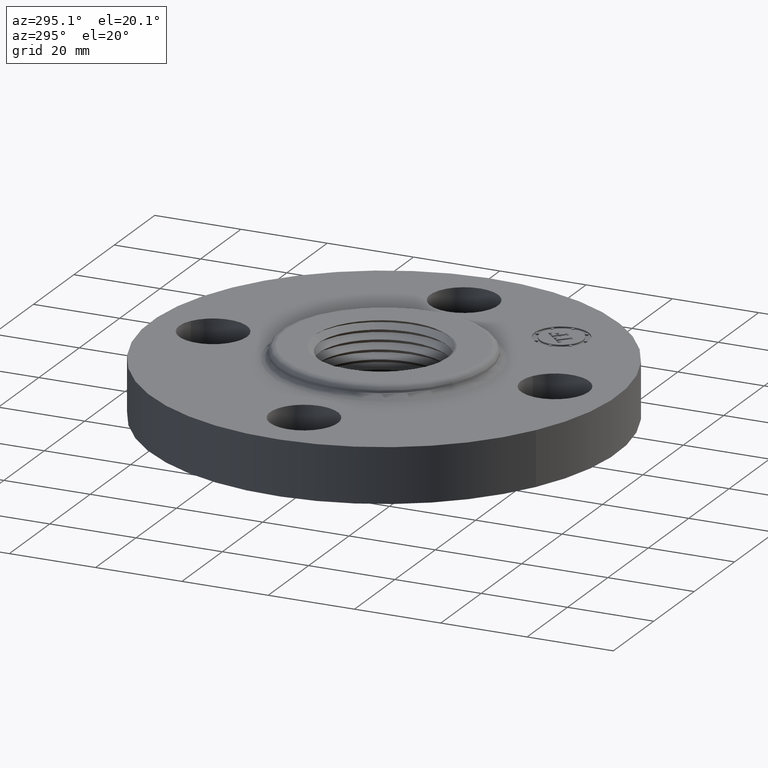
[diagram: clean part render]
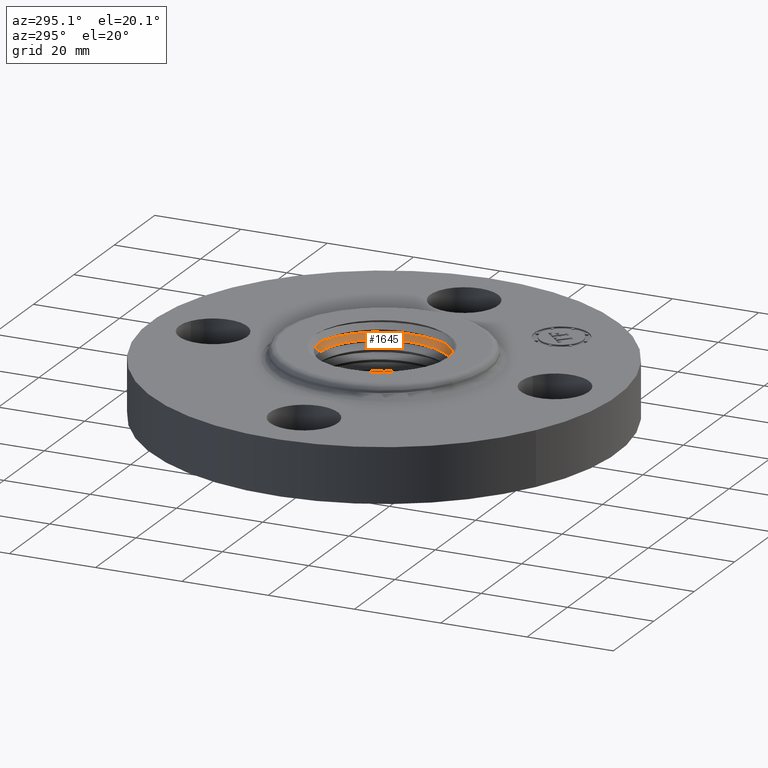
[diagram: same view with one face highlighted and labeled with its STEP entity id]
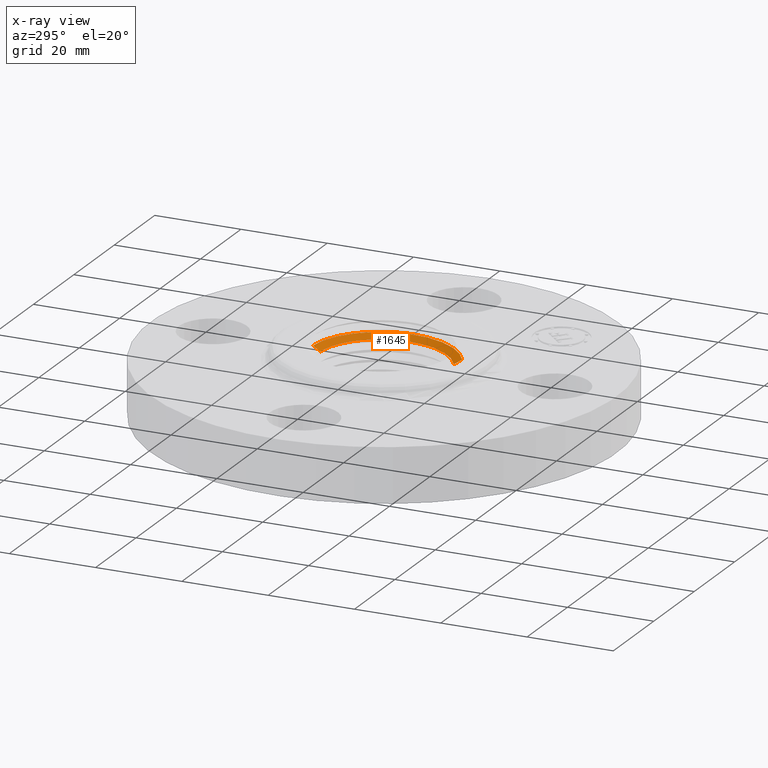
[diagram: x-ray of the same camera — body ghosted, the highlighted face saturated]
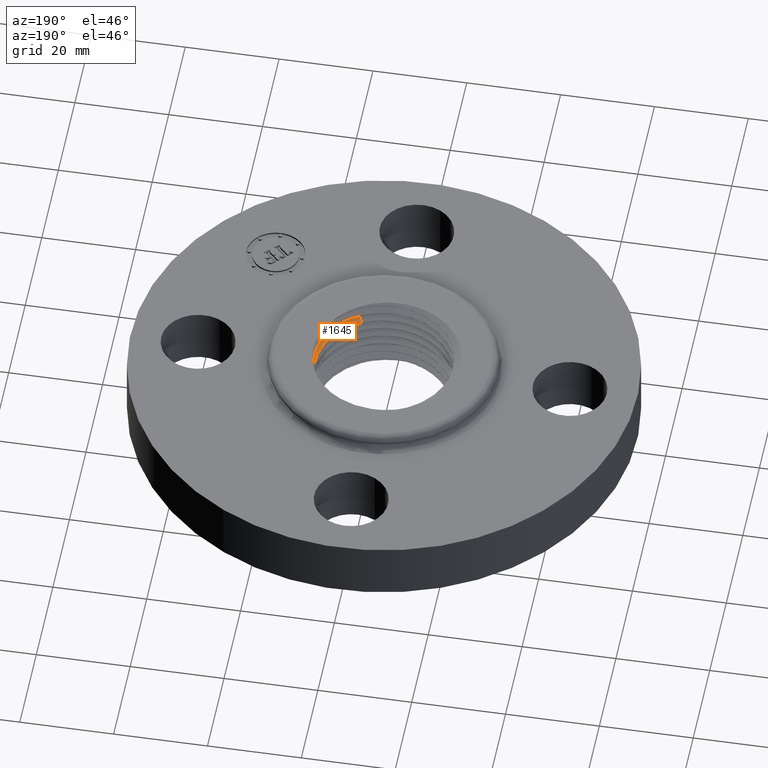
[diagram: same view with one face highlighted and labeled with its STEP entity id]
A machine part, auxiliary view. The second image highlights one B-rep face of the part: STEP entity #1645.
The next image is the same camera in x-ray: the body ghosted, the highlighted face saturated — about 0% of this face is hidden behind the body in this view.
A second angle (auxiliary view) of the same face is appended — the face is thin or edge-on in the first view.
In plain terms, the highlighted face is a freeform B-spline surface patch.
Its self-contained STEP definition (entity closure, byte-faithful):
#1304=CARTESIAN_POINT('Vertex',(1.01127481126E-006,0.648645552029,0.51491301563)) ;
#1308=CARTESIAN_POINT('Control Point',(1.0112748119E-006,0.648645552029,0.51491301563)) ;
#1309=CARTESIAN_POINT('Control Point',(0.171303034285,0.648531012415,0.511256272748)) ;
#1310=CARTESIAN_POINT('Control Point',(0.342569153097,0.591867079357,0.507598679352)) ;
#1311=CARTESIAN_POINT('Control Point',(0.488236149389,0.478691527089,0.503952572092)) ;
#1312=CARTESIAN_POINT('Control Point',(0.682674334736,0.174723771119,0.496633984929)) ;
#1313=CARTESIAN_POINT('Control Point',(0.657731177714,-0.185257333617,0.48931198521)) ;
#1314=CARTESIAN_POINT('Control Point',(0.584098149123,-0.354428218253,0.485662523343)) ;
#1315=CARTESIAN_POINT('Control Point',(0.460829894683,-0.486203448787,0.481999815434)) ;
#1316=CARTESIAN_POINT('Control Point',(0.310428362573,-0.568237419233,0.478336255612)) ;
#1317=CARTESIAN_POINT('Vertex',(0.310428362573,-0.568237419233,0.478336255612)) ;
#1583=CARTESIAN_POINT('Control Point',(-7.71232185343E-006,0.577720807479,0.473608166828)) ;
#1584=CARTESIAN_POINT('Control Point',(1.0112748119E-006,0.648645552029,0.51491301563)) ;
#1585=CARTESIAN_POINT('Control Point',(0.152563478929,0.577608571709,0.469951424001)) ;
#1586=CARTESIAN_POINT('Control Point',(0.171303034285,0.648531012415,0.511256272748)) ;
#1587=CARTESIAN_POINT('Control Point',(0.305095176428,0.527130353654,0.466293830661)) ;
#1588=CARTESIAN_POINT('Control Point',(0.342569153097,0.591867079357,0.507598679352)) ;
#1589=CARTESIAN_POINT('Control Point',(0.434819339532,0.426324972708,0.462647723927)) ;
#1590=CARTESIAN_POINT('Control Point',(0.488236149389,0.478691527089,0.503952572092)) ;
#1591=CARTESIAN_POINT('Control Point',(0.607962358125,0.155604130327,0.455329135794)) ;
#1592=CARTESIAN_POINT('Control Point',(0.682674334736,0.174723771119,0.496633984929)) ;
#1593=CARTESIAN_POINT('Control Point',(0.58572603556,-0.164971054533,0.448007137207)) ;
#1594=CARTESIAN_POINT('Control Point',(0.657731177714,-0.185257333617,0.48931198521)) ;
#1595=CARTESIAN_POINT('Control Point',(0.520143198431,-0.315614514758,0.444357674857)) ;
#1596=CARTESIAN_POINT('Control Point',(0.584098149123,-0.354428218253,0.485662523343)) ;
#1597=CARTESIAN_POINT('Control Point',(0.410366188507,-0.432950399491,0.440694966993)) ;
#1598=CARTESIAN_POINT('Control Point',(0.460829894683,-0.486203448787,0.481999815434)) ;
#1599=CARTESIAN_POINT('Control Point',(0.276434490707,-0.505990040376,0.437031407215)) ;
#1600=CARTESIAN_POINT('Control Point',(0.310428362573,-0.568237419233,0.478336255612)) ;
#1602=CARTESIAN_POINT('Control Point',(0.277069433679,-0.507152706868,0.437802905776)) ;
#1603=CARTESIAN_POINT('Control Point',(0.310428362573,-0.568237419233,0.478336255612)) ;
#1604=CARTESIAN_POINT('Vertex',(0.277069433679,-0.507152706868,0.437802905776)) ;
#1608=CARTESIAN_POINT('Control Point',(-7.54938111717E-006,0.579045551222,0.474379665412)) ;
#1609=CARTESIAN_POINT('Control Point',(1.01127481192E-006,0.648645552029,0.51491301563)) ;
#1610=CARTESIAN_POINT('Vertex',(-7.54938111769E-006,0.579045551222,0.474379665412)) ;
#1614=CARTESIAN_POINT('Control Point',(0.277069433679,-0.507152706868,0.437802905776)) ;
#1615=CARTESIAN_POINT('Control Point',(0.303814829246,-0.492567060954,0.438532821218)) ;
#1616=CARTESIAN_POINT('Control Point',(0.329599808545,-0.476218693091,0.439262721197)) ;
#1617=CARTESIAN_POINT('Control Point',(0.35438830903,-0.458120944214,0.439995823432)) ;
#1618=CARTESIAN_POINT('Control Point',(0.401503624512,-0.418633648986,0.441465141723)) ;
#1619=CARTESIAN_POINT('Control Point',(0.442985488882,-0.373276446645,0.442934166265)) ;
#1620=CARTESIAN_POINT('Control Point',(0.462133161601,-0.349301075197,0.443666974314)) ;
#1621=CARTESIAN_POINT('Control Point',(0.514569081368,-0.27401992628,0.445859880605)) ;
#1622=CARTESIAN_POINT('Control Point',(0.551486440385,-0.189385943712,0.448052148724)) ;
#1623=CARTESIAN_POINT('Control Point',(0.568482246653,-0.129953015593,0.449514536636)) ;
#1624=CARTESIAN_POINT('Control Point',(0.586382161185,-0.00796787548716,0.452441020617)) ;
#1625=CARTESIAN_POINT('Control Point',(0.571980966582,0.114540051463,0.455369191818)) ;
#1626=CARTESIAN_POINT('Control Point',(0.556669273341,0.17451267054,0.456833365064)) ;
#1627=CARTESIAN_POINT('Control Point',(0.510581521764,0.288929785627,0.459759576942)) ;
#1628=CARTESIAN_POINT('Control Point',(0.436389608448,0.387429340528,0.462685144125)) ;
#1629=CARTESIAN_POINT('Control Point',(0.392982320798,0.431455776498,0.464147620911)) ;
#1630=CARTESIAN_POINT('Control Point',(0.320081091002,0.4880086793,0.466335812867)) ;
#1631=CARTESIAN_POINT('Control Point',(0.238049258402,0.52896315978,0.468524046336)) ;
#1632=CARTESIAN_POINT('Control Point',(0.209766560251,0.540855532542,0.469255803269)) ;
#1633=CARTESIAN_POINT('Control Point',(0.151559628055,0.560850420072,0.470724783726)) ;
#1634=CARTESIAN_POINT('Control Point',(0.0912074981608,0.572987945532,0.472194062873)) ;
#1635=CARTESIAN_POINT('Control Point',(0.0607752524713,0.577006894773,0.472926118595)) ;
#1636=CARTESIAN_POINT('Control Point',(0.0303849735576,0.579023236202,0.473652900579)) ;
#1637=CARTESIAN_POINT('Control Point',(-7.54938111738E-006,0.579045551222,0.474379665412)) ;
#1640=ORIENTED_EDGE('',*,*,#1606,.F.) ;
#1641=ORIENTED_EDGE('',*,*,#1319,.F.) ;
#1642=ORIENTED_EDGE('',*,*,#1612,.T.) ;
#1643=ORIENTED_EDGE('',*,*,#1638,.F.) ;
#1645=ADVANCED_FACE('PartBody',(#1644),#1582,.T.) ;
#1307=B_SPLINE_CURVE_WITH_KNOTS('',5,(#1308,#1309,#1310,#1311,#1312,#1313,#1314,#1315,#1316),.UNSPECIFIED.,.F.,.U.,(6,3,6),(0.,20.627029955,41.2541766411),.UNSPECIFIED.) ;
#1601=B_SPLINE_CURVE_WITH_KNOTS('',1,(#1602,#1603),.UNSPECIFIED.,.F.,.U.,(2,2),(-1.0034218204,1.04236057529),.UNSPECIFIED.) ;
#1607=B_SPLINE_CURVE_WITH_KNOTS('',1,(#1608,#1609),.UNSPECIFIED.,.F.,.U.,(2,2),(-1.00342181961,1.04236057529),.UNSPECIFIED.) ;
#1613=B_SPLINE_CURVE_WITH_KNOTS('',5,(#1614,#1615,#1616,#1617,#1618,#1619,#1620,#1621,#1622,#1623,#1624,#1625,#1626,#1627,#1628,#1629,#1630,#1631,#1632,#1633,#1634,#1635,#1636,#1637),.UNSPECIFIED.,.F.,.U.,(6,3,3,3,3,3,3,6),(0.,5.76930497831,11.5386099566,23.1123418013,34.6889296311,46.2601499316,52.009972123,57.7597943145),.UNSPECIFIED.) ;
#1582=B_SPLINE_SURFACE_WITH_KNOTS('',5,1,((#1583,#1584),(#1585,#1586),(#1587,#1588),(#1589,#1590),(#1591,#1592),(#1593,#1594),(#1595,#1596),(#1597,#1598),(#1599,#1600)),.UNSPECIFIED.,.F.,.F.,.U.,(6,3,6),(2,2),(0.,20.627029955,41.2541766411),(-1.04236057529,1.04236057529),.UNSPECIFIED.) ;
#1319=EDGE_CURVE('',#1305,#1318,#1307,.T.) ;
#1606=EDGE_CURVE('',#1318,#1605,#1601,.F.) ;
#1612=EDGE_CURVE('',#1305,#1611,#1607,.F.) ;
#1638=EDGE_CURVE('',#1605,#1611,#1613,.T.) ;
#1639=EDGE_LOOP('',(#1640,#1641,#1642,#1643)) ;
#1644=FACE_OUTER_BOUND('',#1639,.T.) ;
#1305=VERTEX_POINT('',#1304) ;
#1318=VERTEX_POINT('',#1317) ;
#1605=VERTEX_POINT('',#1604) ;
#1611=VERTEX_POINT('',#1610) ;